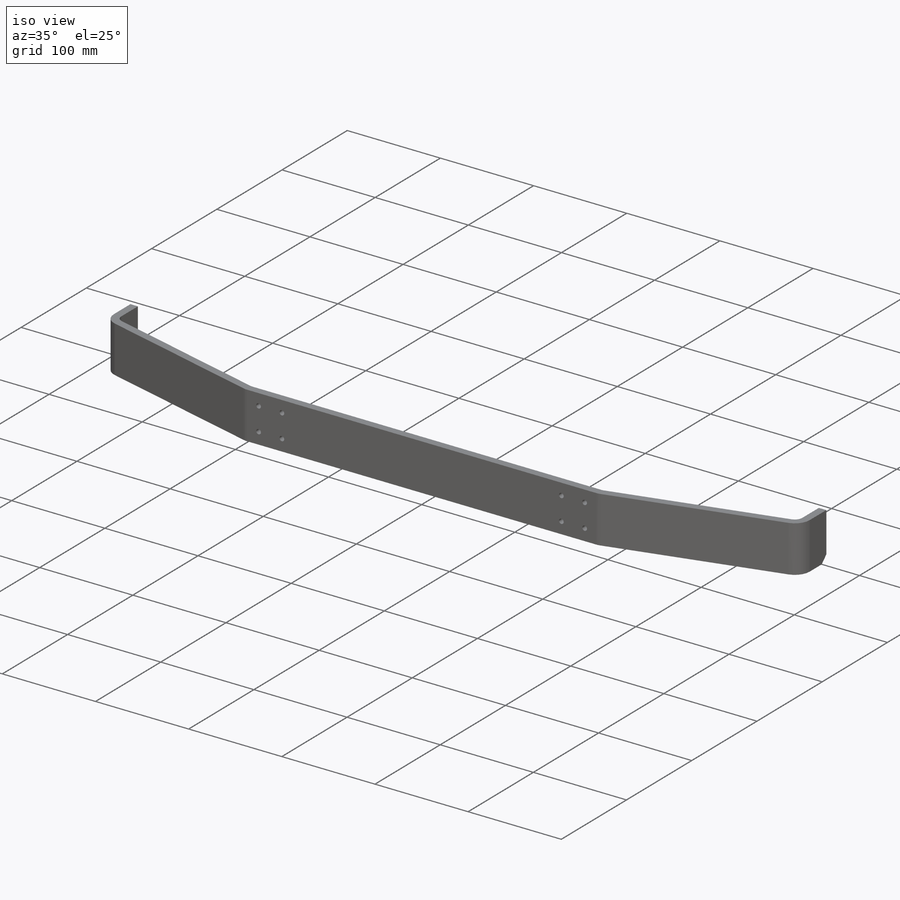
[diagram: iso view]
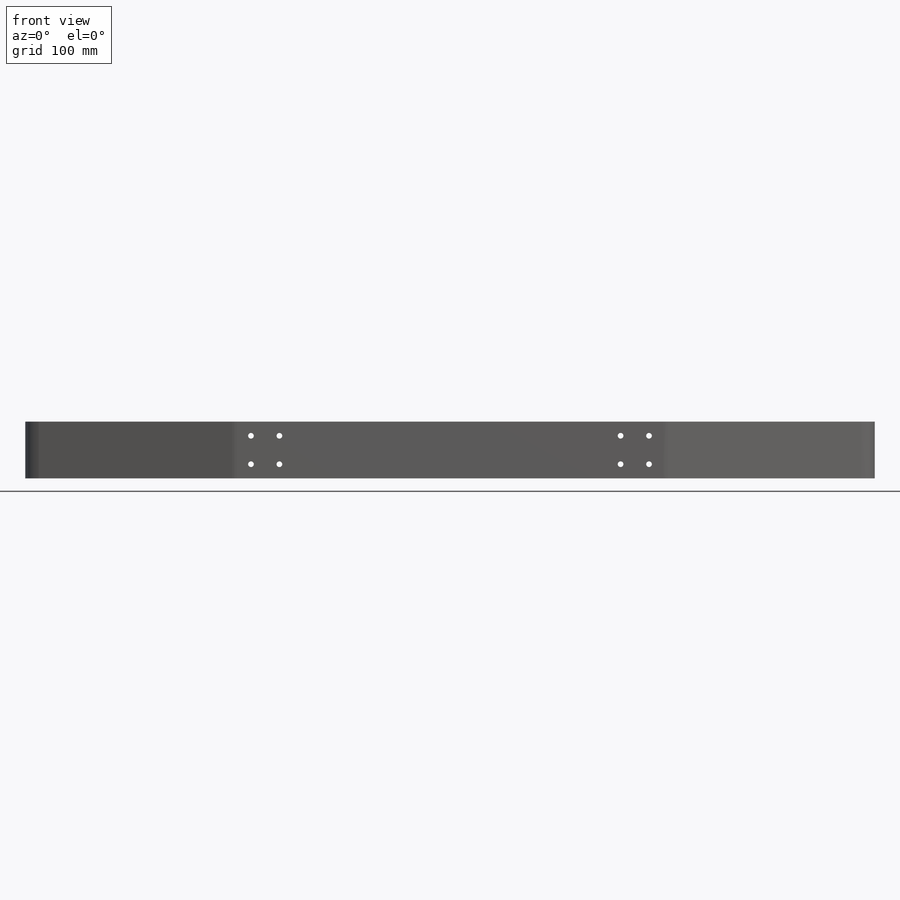
[diagram: front view]
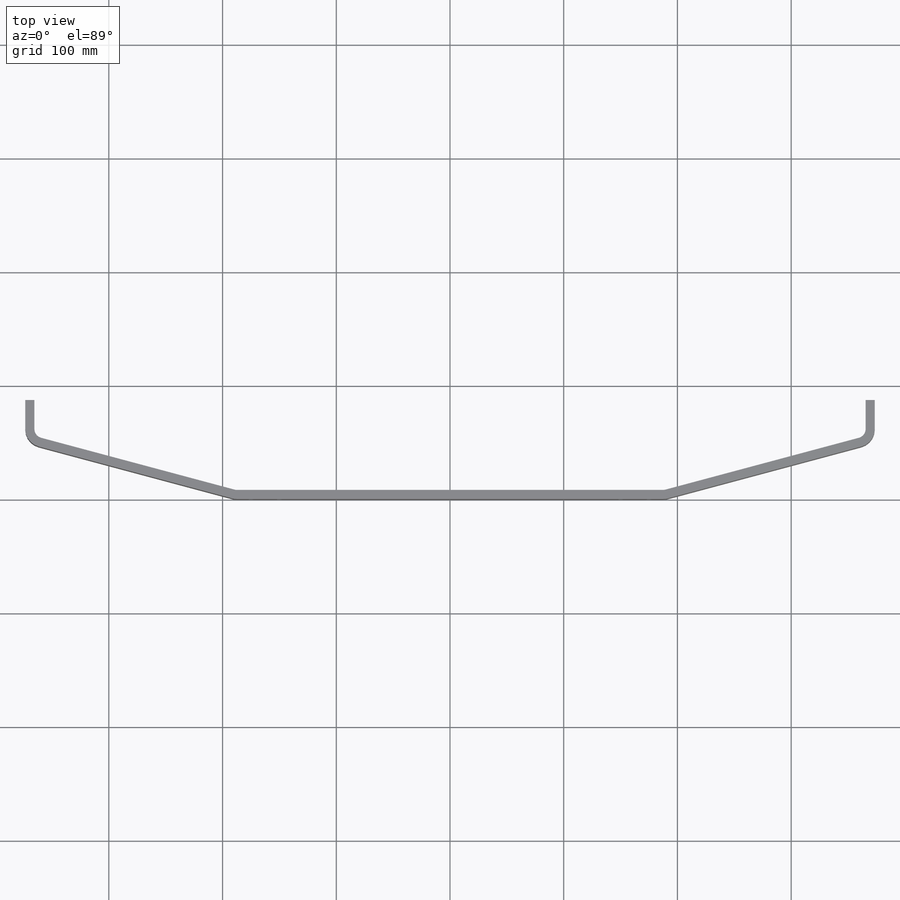
[diagram: top view]
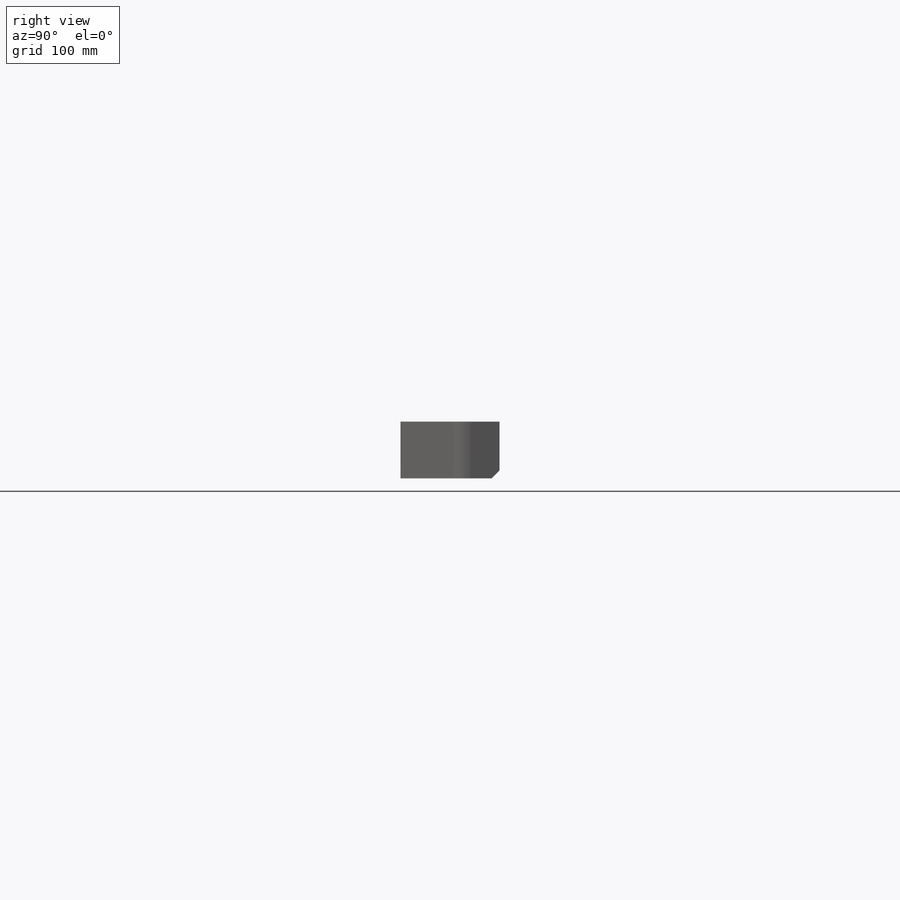
[diagram: right view]
SOLIDWORKS PART (.sldprt)
format: sldprt  version: not decoded by parser v0  size: 279,552 bytes
history: native  units: mm
features: thread x8, sketch x6, sheet_metal_op x5, chamfer x4, plane x3, material x1, hole x1 + 5 further entries (+9 scaffold rows collapsed)
feature tree (42):
  scaffold x9  (default folders/planes/origin — collapsed)
  material  " 09Г2С ГОСТ 4543-71"
  plane  "Спереди"
  plane  "Сверху"
  plane  "Слева"
  "Начало координат"
  "PTricksFreeParameters"
  "PTricksEqu"
  "PTricksFreeParameters"
  sketch  "Эскиз1"  dims[c1.D1=~55.224739mm c2.D1=~32.909911deg c3.D1=~261.799388mm c3.D2=40.0mm c3.D3=747.0mm c3.D4=87.0mm c3.D5=~396.187224mm]
  sketch  "Эскиз2"  dims[D1=8.0mm D2=375.0mm D3=8.0mm D4=8.0mm]
  sheet_metal_op  "Листовой металл1"  Толщина=8mm
  sheet_metal_op  "Базовая кромка2"
  sheet_metal_op  "Основание2"
  sheet_metal_op  "Основание3"
  sheet_metal_op  "Основание4"
  sketch  "Эскиз3"  dims[D1=236.0mm D2=12.5mm D3=12.5mm D4=12.5mm D5=12.5mm]
  hole  "Отверстие обработанное метчиком M6x1.01"  [1 undecoded]
  sketch  "Трехмерный эскиз1"
  sketch  "Эскиз4"  dims[hole-wizard template sketch: 54 standard entries collapsed; hole parameters kept: c17.Диаметр проходного сверла=5.0mm c17.Глубина проходного сверла=8.0mm c17.Диаметр передней зенковки=6.5mm c17.D4=~3.666174mm c17.Угол передней зенковки=~1570.796327mm]
  thread  "Отверстие резьбы1"  Diameter=6mm  [1 undecoded]
  thread  "Отверстие резьбы2"  Diameter=6mm  [1 undecoded]
  thread  "Отверстие резьбы3"  Diameter=6mm  [1 undecoded]
  thread  "Отверстие резьбы4"  Diameter=6mm  [1 undecoded]
  thread  "Отверстие резьбы5"  Diameter=6mm  [1 undecoded]
  thread  "Отверстие резьбы6"  Diameter=6mm  [1 undecoded]
  thread  "Отверстие резьбы7"  Diameter=6mm  [1 undecoded]
  thread  "Отверстие резьбы8"  Diameter=6mm  [1 undecoded]
  chamfer  "Фаска1"  Distance=7mm
  "Развертка2"
  sketch  "Сгиб-Линии2"
  chamfer  "Плоское состояние-<Основание2>1"  [1 undecoded]
  chamfer  "Плоское состояние-<Основание3>1"  [1 undecoded]
  chamfer  "Плоское состояние-<Основание4>1"  [1 undecoded]
decode coverage: 14 of 24 modeling features carry decoded parameters; 5 rows unclassified (native names shown)
note: ~ marks probable driven/reference dimensions
note: 12 parameter values undecoded
summary: no parameter record found for 4 features
note: suppression state not decoded; provenance and decode notes live in map.json
